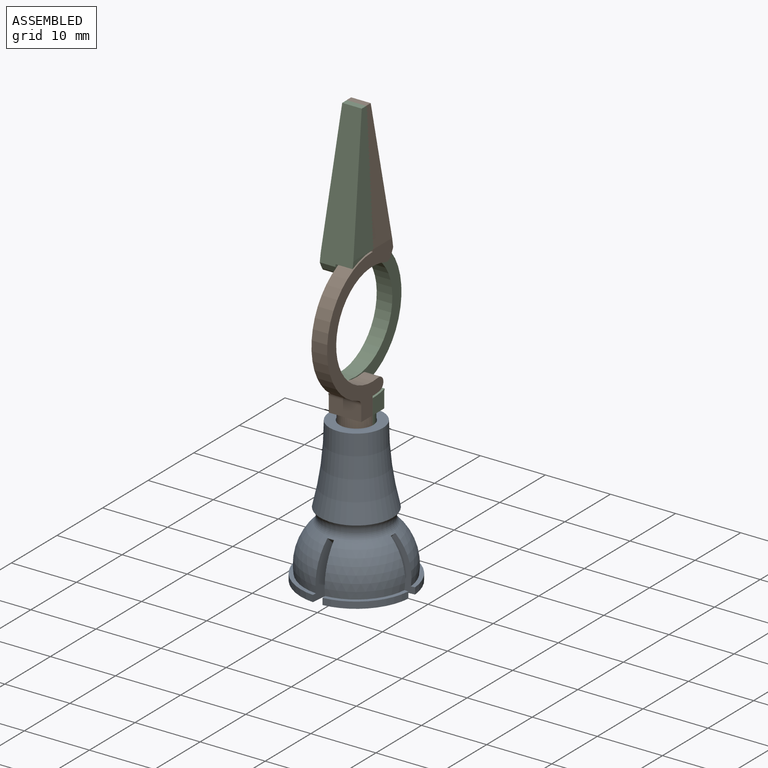
[diagram: assembled view]
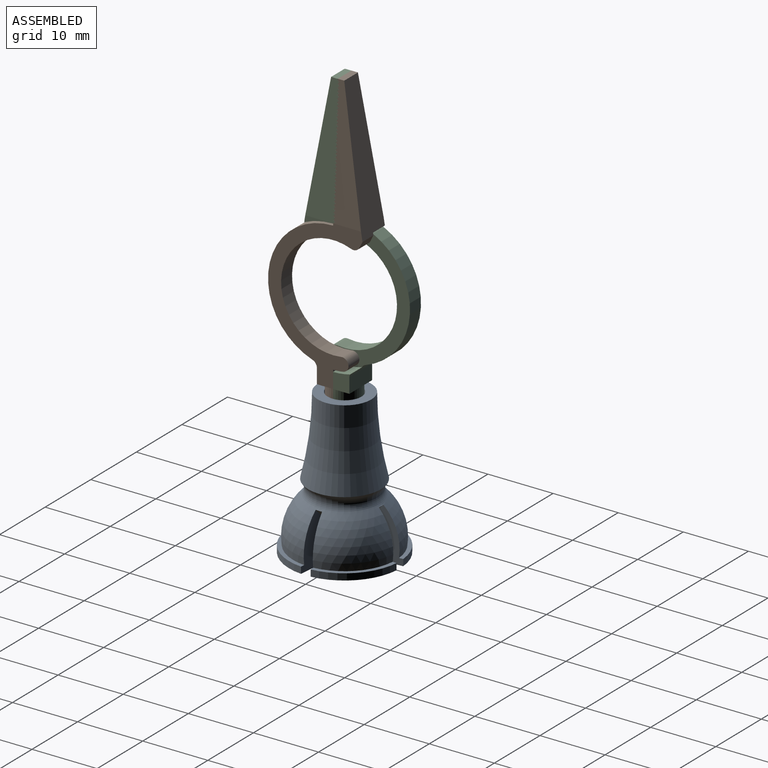
[diagram: assembled view, second angle]
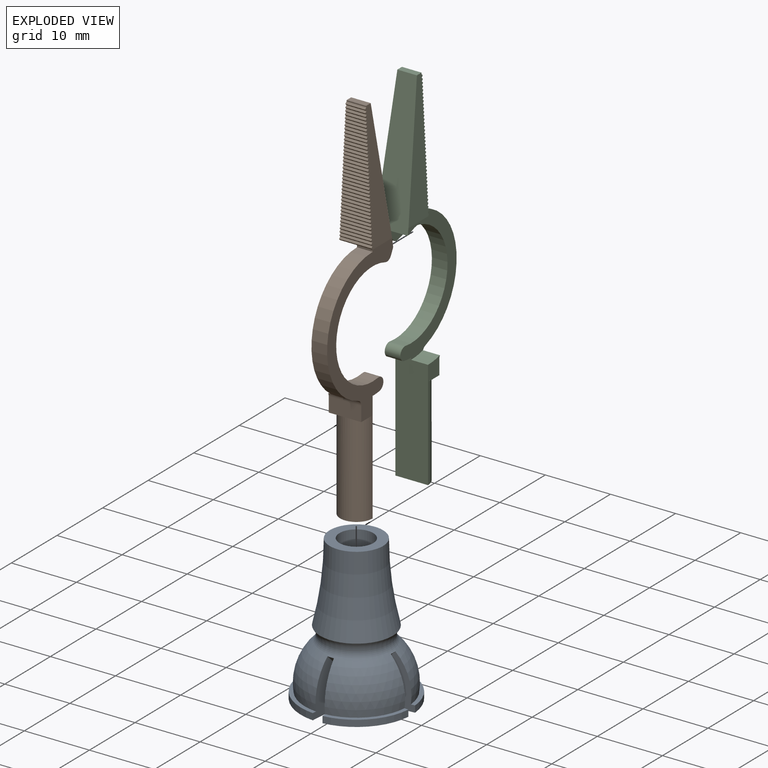
[diagram: exploded view]
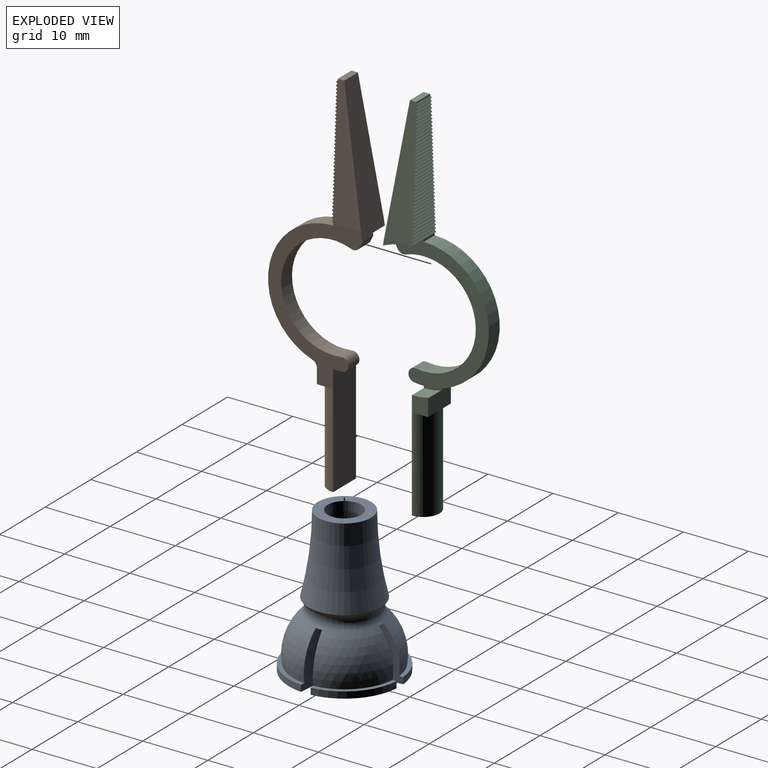
[diagram: exploded view, second angle]
ASSEMBLY  parts=3 mates=2
PART A: 32 faces, bbox 39.7x39.7x34.9 mm
  f0: cylinder r=8.53mm len=7.75mm, axis (0,0,1), area 11.9mm2, adj f3,f5,f27,f31
  f1: plane 7.81x7.81mm, normal (0,0,1), area 7.1mm2, adj f11,f16,f22,f30
  f2: sphere r=5.95mm, area 278.1mm2, adj f3,f6,f9,f17,f20,f21,f22,f23
  f3: plane 8.01x8.01mm, normal (0,0,-1), area 29.4mm2, adj f0,f2,f27,f31
  f4: cylinder r=8.53mm len=7.75mm, axis (0,0,1), area 11.9mm2, adj f6,f8,f24,f28
  f5: plane 7.81x7.81mm, normal (0,0,1), area 7.1mm2, adj f0,f16,f27,f31
  f6: plane 8.01x8.01mm, normal (0,0,-1), area 29.4mm2, adj f2,f4,f24,f28
  f7: cylinder r=8.53mm len=7.75mm, axis (0,0,1), area 11.9mm2, adj f9,f10,f21,f25
  f8: plane 7.81x7.81mm, normal (0,0,1), area 7.1mm2, adj f4,f16,f24,f28
  f9: plane 8.01x8.01mm, normal (0,0,-1), area 29.4mm2, adj f2,f7,f21,f25
  f10: plane 7.81x7.81mm, normal (0,0,1), area 7.1mm2, adj f7,f16,f21,f25
  f11: cylinder r=8.53mm len=7.75mm, axis (0,0,1), area 11.9mm2, adj f1,f17,f22,f30
  f12: cylinder r=2.6mm len=13mm, axis (0,0,1), area 212.4mm2, adj f13,f18
  f13: plane 8.2x8.2mm, normal (0,0,1), area 31.6mm2, adj f12,f14
  f14: torus R=53.27mm, axis (0,0,1), area 352mm2, adj f13,f15
  f15: cone r=5.6mm half-angle=35deg, axis (0,0,1), area 13.2mm2, adj f14,f19
  f16: sphere r=8mm, area 310.9mm2, adj f1,f5,f8,f10,f19,f20,f21,f22
  f17: plane 8.01x8.01mm, normal (0,0,-1), area 29.4mm2, adj f2,f11,f22,f30
  f18: plane 5.2x5.2mm, normal (0,0,1), area 21.2mm2, adj f12
  f19: torus R=6.61mm, axis (0,0,-1), area 69.7mm2, adj f15,f16
  f20: cone r=4.21mm half-angle=45deg, axis (0,0,1), area 1.8mm2, adj f2,f16,f21,f22
  f21: plane 7.86x4.3mm, normal (-0.09,-1,0), area 16.5mm2, adj f2,f7,f9,f10,f16,f20
  f22: plane 7.86x4.3mm, normal (-0.09,1,0), area 16.5mm2, adj f1,f2,f11,f16,f17,f20
  f23: cone r=4.21mm half-angle=45deg, axis (0,0,1), area 1.8mm2, adj f2,f16,f24,f25
  f24: plane 7.86x4.3mm, normal (-1,0.09,0), area 16.5mm2, adj f2,f4,f6,f8,f16,f23
  f25: plane 7.86x4.3mm, normal (1,0.09,0), area 16.5mm2, adj f2,f7,f9,f10,f16,f23
  f26: cone r=4.21mm half-angle=45deg, axis (0,0,1), area 1.8mm2, adj f2,f16,f27,f28
  f27: plane 7.86x4.3mm, normal (0.09,1,0), area 16.5mm2, adj f0,f2,f3,f5,f16,f26
  f28: plane 7.86x4.3mm, normal (0.09,-1,0), area 16.5mm2, adj f2,f4,f6,f8,f16,f26
  f29: cone r=4.21mm half-angle=45deg, axis (0,0,1), area 1.8mm2, adj f2,f16,f30,f31
  f30: plane 7.86x4.3mm, normal (1,-0.09,0), area 16.5mm2, adj f1,f2,f11,f16,f17,f29
  f31: plane 7.86x4.3mm, normal (-1,-0.09,0), area 16.5mm2, adj f0,f2,f3,f5,f16,f29
PART B: 103 faces, bbox 57x14.5x5 mm
  f0: plane 3x1mm, normal (1,0,0), area 3mm2, adj f1,f2,f98,f99
  f1: plane 3.02x0.2mm, normal (0,1,0), area 0.6mm2, adj f0,f82,f98,f99
  f2: plane 21.07x5mm, normal (0.16,-0.99,0), area 85.9mm2, adj f0,f3,f4,f87,f90,f96,f98,f99
  f3: plane 22.98x14.5mm, normal (0,0,1), area 78.9mm2, adj f2,f83,f84,f85,f88,f89,f90,f91
  f4: plane 4.44x1.01mm, normal (0,0,-1), area 1.4mm2, adj f2,f96,f98
  f5: plane 5x0.25mm, normal (-0.71,0.71,0), area 1.8mm2, adj f6,f84,f96,f98,f99
  f6: plane 4.97x0.25mm, normal (0.71,0.71,0), area 1.8mm2, adj f5,f7,f98,f99
  f7: plane 4.95x0.25mm, normal (-0.71,0.71,0), area 1.7mm2, adj f6,f8,f98,f99
  f8: plane 4.92x0.25mm, normal (0.71,0.71,0), area 1.7mm2, adj f7,f9,f98,f99
  f9: plane 4.9x0.25mm, normal (-0.71,0.71,0), area 1.7mm2, adj f8,f10,f98,f99
  f10: plane 4.87x0.25mm, normal (0.71,0.71,0), area 1.7mm2, adj f9,f11,f98,f99
  f11: plane 4.85x0.25mm, normal (-0.71,0.71,0), area 1.7mm2, adj f10,f12,f98,f99
  f12: plane 4.82x0.25mm, normal (0.71,0.71,0), area 1.7mm2, adj f11,f13,f98,f99
  f13: plane 4.8x0.25mm, normal (-0.71,0.71,0), area 1.7mm2, adj f12,f14,f98,f99
  f14: plane 4.77x0.25mm, normal (0.71,0.71,0), area 1.7mm2, adj f13,f15,f98,f99
  f15: plane 4.75x0.25mm, normal (-0.71,0.71,0), area 1.7mm2, adj f14,f16,f98,f99
  f16: plane 4.72x0.25mm, normal (0.71,0.71,0), area 1.7mm2, adj f15,f17,f98,f99
  f17: plane 4.7x0.25mm, normal (-0.71,0.71,0), area 1.7mm2, adj f16,f18,f98,f99
  f18: plane 4.67x0.25mm, normal (0.71,0.71,0), area 1.6mm2, adj f17,f19,f98,f99
  f19: plane 4.64x0.25mm, normal (-0.71,0.71,0), area 1.6mm2, adj f18,f20,f98,f99
  f20: plane 4.62x0.25mm, normal (0.71,0.71,0), area 1.6mm2, adj f19,f21,f98,f99
  f21: plane 4.59x0.25mm, normal (-0.71,0.71,0), area 1.6mm2, adj f20,f22,f98,f99
  f22: plane 4.57x0.25mm, normal (0.71,0.71,0), area 1.6mm2, adj f21,f23,f98,f99
  f23: plane 4.54x0.25mm, normal (-0.71,0.71,0), area 1.6mm2, adj f22,f24,f98,f99
  f24: plane 4.52x0.25mm, normal (0.71,0.71,0), area 1.6mm2, adj f23,f25,f98,f99
  f25: plane 4.49x0.25mm, normal (-0.71,0.71,0), area 1.6mm2, adj f24,f26,f98,f99
  f26: plane 4.47x0.25mm, normal (0.71,0.71,0), area 1.6mm2, adj f25,f27,f98,f99
  f27: plane 4.44x0.25mm, normal (-0.71,0.71,0), area 1.6mm2, adj f26,f28,f98,f99
  f28: plane 4.42x0.25mm, normal (0.71,0.71,0), area 1.6mm2, adj f27,f29,f98,f99
  f29: plane 4.39x0.25mm, normal (-0.71,0.71,0), area 1.5mm2, adj f28,f30,f98,f99
  f30: plane 4.37x0.25mm, normal (0.71,0.71,0), area 1.5mm2, adj f29,f31,f98,f99
  f31: plane 4.34x0.25mm, normal (-0.71,0.71,0), area 1.5mm2, adj f30,f32,f98,f99
  f32: plane 4.31x0.25mm, normal (0.71,0.71,0), area 1.5mm2, adj f31,f33,f98,f99
  f33: plane 4.29x0.25mm, normal (-0.71,0.71,0), area 1.5mm2, adj f32,f34,f98,f99
  f34: plane 4.26x0.25mm, normal (0.71,0.71,0), area 1.5mm2, adj f33,f35,f98,f99
  f35: plane 4.24x0.25mm, normal (-0.71,0.71,0), area 1.5mm2, adj f34,f36,f98,f99
  f36: plane 4.21x0.25mm, normal (0.71,0.71,0), area 1.5mm2, adj f35,f37,f98,f99
  f37: plane 4.19x0.25mm, normal (-0.71,0.71,0), area 1.5mm2, adj f36,f38,f98,f99
  f38: plane 4.16x0.25mm, normal (0.71,0.71,0), area 1.5mm2, adj f37,f39,f98,f99
  f39: plane 4.14x0.25mm, normal (-0.71,0.71,0), area 1.5mm2, adj f38,f40,f98,f99
  f40: plane 4.11x0.25mm, normal (0.71,0.71,0), area 1.4mm2, adj f39,f41,f98,f99
  f41: plane 4.09x0.25mm, normal (-0.71,0.71,0), area 1.4mm2, adj f40,f42,f98,f99
  f42: plane 4.06x0.25mm, normal (0.71,0.71,0), area 1.4mm2, adj f41,f43,f98,f99
  f43: plane 4.04x0.25mm, normal (-0.71,0.71,0), area 1.4mm2, adj f42,f44,f98,f99
  f44: plane 4.01x0.25mm, normal (0.71,0.71,0), area 1.4mm2, adj f43,f45,f98,f99
  f45: plane 3.98x0.25mm, normal (-0.71,0.71,0), area 1.4mm2, adj f44,f46,f98,f99
  f46: plane 3.96x0.25mm, normal (0.71,0.71,0), area 1.4mm2, adj f45,f47,f98,f99
  f47: plane 3.93x0.25mm, normal (-0.71,0.71,0), area 1.4mm2, adj f46,f48,f98,f99
  f48: plane 3.91x0.25mm, normal (0.71,0.71,0), area 1.4mm2, adj f47,f49,f98,f99
  f49: plane 3.88x0.25mm, normal (-0.71,0.71,0), area 1.4mm2, adj f48,f50,f98,f99
  f50: plane 3.86x0.25mm, normal (0.71,0.71,0), area 1.4mm2, adj f49,f51,f98,f99
  f51: plane 3.83x0.25mm, normal (-0.71,0.71,0), area 1.4mm2, adj f50,f52,f98,f99
  f52: plane 3.81x0.25mm, normal (0.71,0.71,0), area 1.3mm2, adj f51,f53,f98,f99
  f53: plane 3.78x0.25mm, normal (-0.71,0.71,0), area 1.3mm2, adj f52,f54,f98,f99
  f54: plane 3.76x0.25mm, normal (0.71,0.71,0), area 1.3mm2, adj f53,f55,f98,f99
  f55: plane 3.73x0.25mm, normal (-0.71,0.71,0), area 1.3mm2, adj f54,f56,f98,f99
  f56: plane 3.71x0.25mm, normal (0.71,0.71,0), area 1.3mm2, adj f55,f57,f98,f99
  f57: plane 3.68x0.25mm, normal (-0.71,0.71,0), area 1.3mm2, adj f56,f58,f98,f99
  f58: plane 3.66x0.25mm, normal (0.71,0.71,0), area 1.3mm2, adj f57,f59,f98,f99
  f59: plane 3.63x0.25mm, normal (-0.71,0.71,0), area 1.3mm2, adj f58,f60,f98,f99
  f60: plane 3.6x0.25mm, normal (0.71,0.71,0), area 1.3mm2, adj f59,f61,f98,f99
  f61: plane 3.58x0.25mm, normal (-0.71,0.71,0), area 1.3mm2, adj f60,f62,f98,f99
  f62: plane 3.55x0.25mm, normal (0.71,0.71,0), area 1.3mm2, adj f61,f63,f98,f99
  f63: plane 3.53x0.25mm, normal (-0.71,0.71,0), area 1.2mm2, adj f62,f64,f98,f99
  f64: plane 3.5x0.25mm, normal (0.71,0.71,0), area 1.2mm2, adj f63,f65,f98,f99
  f65: plane 3.48x0.25mm, normal (-0.71,0.71,0), area 1.2mm2, adj f64,f66,f98,f99
  f66: plane 3.45x0.25mm, normal (0.71,0.71,0), area 1.2mm2, adj f65,f67,f98,f99
  f67: plane 3.43x0.25mm, normal (-0.71,0.71,0), area 1.2mm2, adj f66,f68,f98,f99
  f68: plane 3.4x0.25mm, normal (0.71,0.71,0), area 1.2mm2, adj f67,f69,f98,f99
  f69: plane 3.38x0.25mm, normal (-0.71,0.71,0), area 1.2mm2, adj f68,f70,f98,f99
  f70: plane 3.35x0.25mm, normal (0.71,0.71,0), area 1.2mm2, adj f69,f71,f98,f99
  f71: plane 3.33x0.25mm, normal (-0.71,0.71,0), area 1.2mm2, adj f70,f72,f98,f99
  f72: plane 3.3x0.25mm, normal (0.71,0.71,0), area 1.2mm2, adj f71,f73,f98,f99
  f73: plane 3.27x0.25mm, normal (-0.71,0.71,0), area 1.2mm2, adj f72,f74,f98,f99
  f74: plane 3.25x0.25mm, normal (0.71,0.71,0), area 1.1mm2, adj f73,f75,f98,f99
  f75: plane 3.22x0.25mm, normal (-0.71,0.71,0), area 1.1mm2, adj f74,f76,f98,f99
  f76: plane 3.2x0.25mm, normal (0.71,0.71,0), area 1.1mm2, adj f75,f77,f98,f99
  f77: plane 3.17x0.25mm, normal (-0.71,0.71,0), area 1.1mm2, adj f76,f78,f98,f99
  f78: plane 3.15x0.25mm, normal (0.71,0.71,0), area 1.1mm2, adj f77,f79,f98,f99
  f79: plane 3.12x0.25mm, normal (-0.71,0.71,0), area 1.1mm2, adj f78,f80,f98,f99
  f80: plane 3.1x0.25mm, normal (0.71,0.71,0), area 1.1mm2, adj f79,f81,f98,f99
  f81: plane 3.07x0.25mm, normal (-0.71,0.71,0), area 1.1mm2, adj f80,f82,f98,f99
  f82: plane 3.05x0.25mm, normal (0.71,0.71,0), area 1.1mm2, adj f1,f81,f98,f99
  f83: plane 17x5mm, normal (0,-1,0), area 84.2mm2, adj f3,f87,f88,f93,f94,f95,f97
  f84: plane 2.4x0.3mm, normal (0,1,0), area 0.7mm2, adj f3,f5,f87,f91
  f85: plane 5x2.25mm, normal (0,1,0), area 11.3mm2, adj f3,f86,f92,f93,f100
  f86: plane 2.5x2.5mm, normal (-1,0,0), area 1.3mm2, adj f85,f93,f94
  f87: plane 20.6x14.5mm, normal (0,0,-1), area 71.3mm2, adj f2,f83,f84,f88,f89,f90,f91,f96
  f88: cylinder r=10mm len=2.4mm, axis (0,0,-1), area 3.6mm2, adj f3,f83,f87,f101
  f89: cylinder r=8mm len=16mm, axis (0,0,-1), area 70mm2, adj f3,f87,f101,f102
  f90: plane 2.4x0.94mm, normal (-0.45,-0.89,0), area 2.5mm2, adj f2,f3,f87,f102
  f91: cylinder r=10mm len=19.48mm, axis (0,0,-1), area 67.6mm2, adj f3,f84,f87,f100
  f92: plane 2.5x2.5mm, normal (-1,0,0), area 1.3mm2, adj f3,f85,f94
  f93: plane 2.72x2.62mm, normal (0,0,-1), area 6.2mm2, adj f83,f85,f86,f97,f100
  f94: cylinder r=2.5mm len=14.32mm, axis (1,0,0), area 112.4mm2, adj f83,f86,f92,f95
  f95: plane 5x2.5mm, normal (-1,0,0), area 9.8mm2, adj f83,f94
  f96: cylinder r=10.3mm len=4.44mm, axis (0,0,1), area 11.9mm2, adj f2,f4,f5,f87
  f97: cylinder r=10.3mm len=2.62mm, axis (0,0,1), area 6.9mm2, adj f83,f87,f93,f100
  f98: plane 19.7x4.52mm, normal (0.05,0,-1), area 54.4mm2, adj f0,f1,f2,f4,f5,f6,f7,f8
  f99: plane 19.7x4.52mm, normal (0.05,0,1), area 54.4mm2, adj f0,f1,f2,f3,f5,f6,f7,f8
  f100: cylinder r=1mm len=5mm, axis (0,0,-1), area 4.3mm2, adj f3,f85,f87,f91,f93,f97
  f101: cylinder r=1mm len=2.4mm, axis (0,0,-1), area 7.5mm2, adj f3,f87,f88,f89
  f102: cylinder r=1mm len=2.4mm, axis (0,0,-1), area 3.5mm2, adj f3,f87,f89,f90
PART C: same geometry as B
PLACE A t=(0,0,-2)mm
PLACE B rot(axis=(-0.71,0,-0.71),180deg) t=(0,0,32.05)mm
PLACE C rot(axis=(0,-1,0),90deg) t=(0.02,0,32.05)mm
MATE revolute B.f94 <-> A.f0  axis (0,0,-1) through (0,0,5.05)mm
MATE fastened B.f83 <-> C.f83  axis (0,1,0) through (0.01,0,13.47)mm
